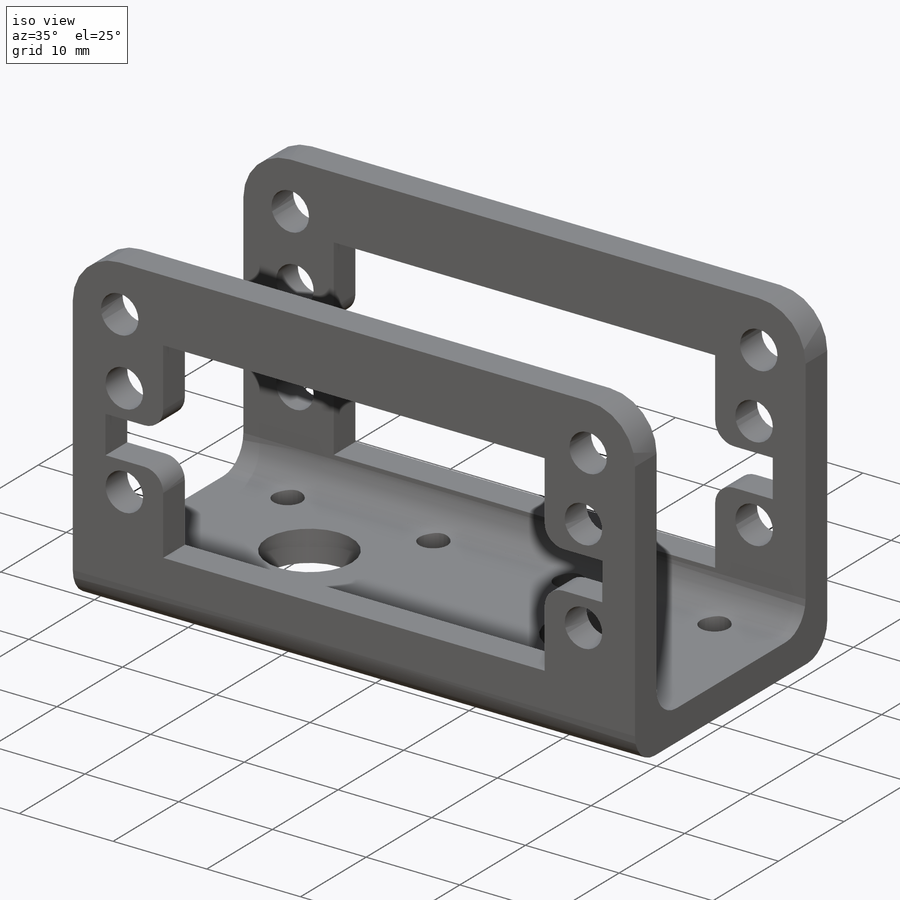
[diagram: iso view]
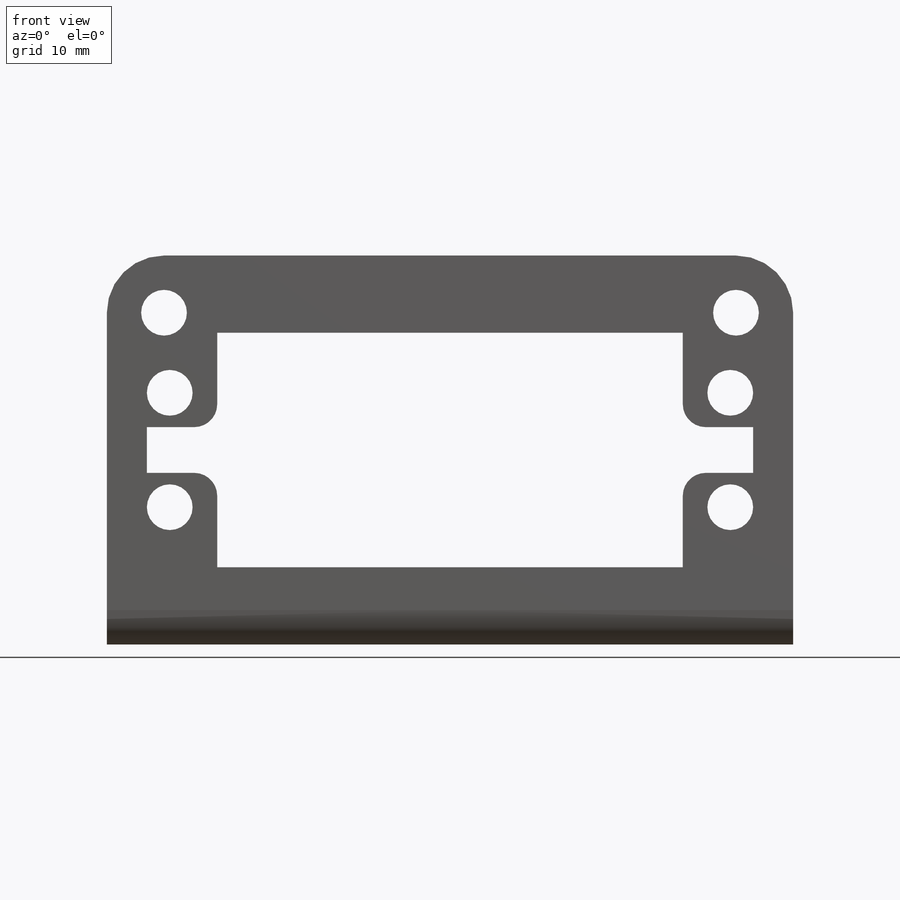
[diagram: front view]
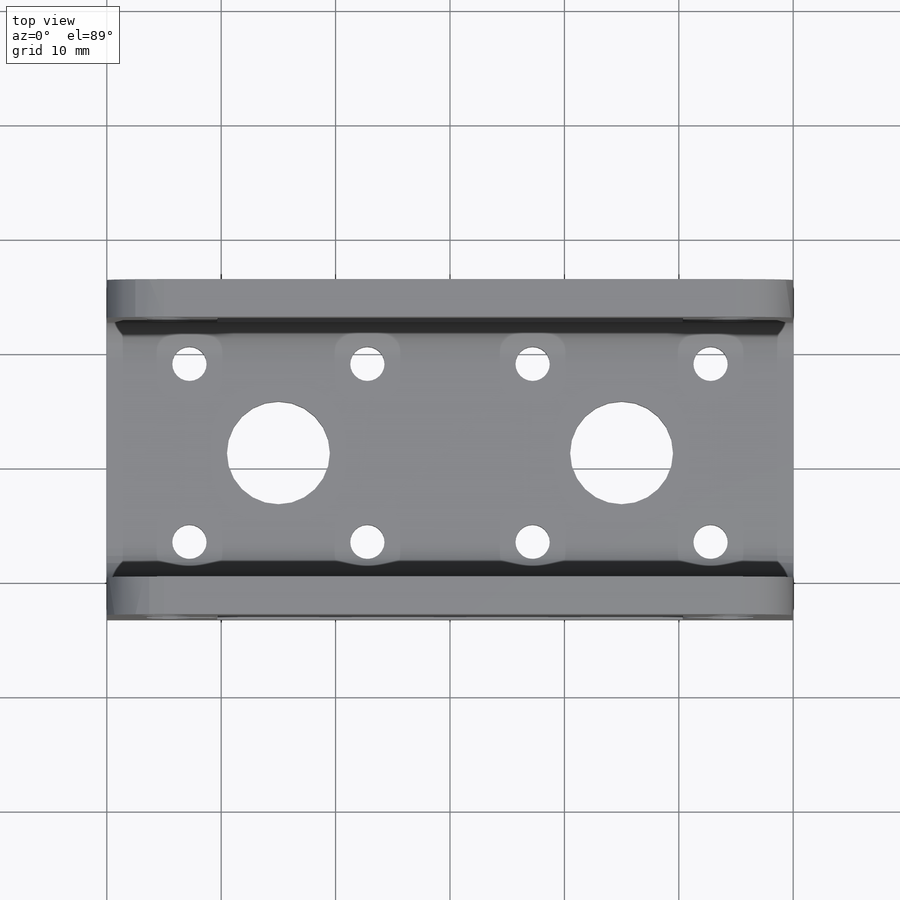
[diagram: top view]
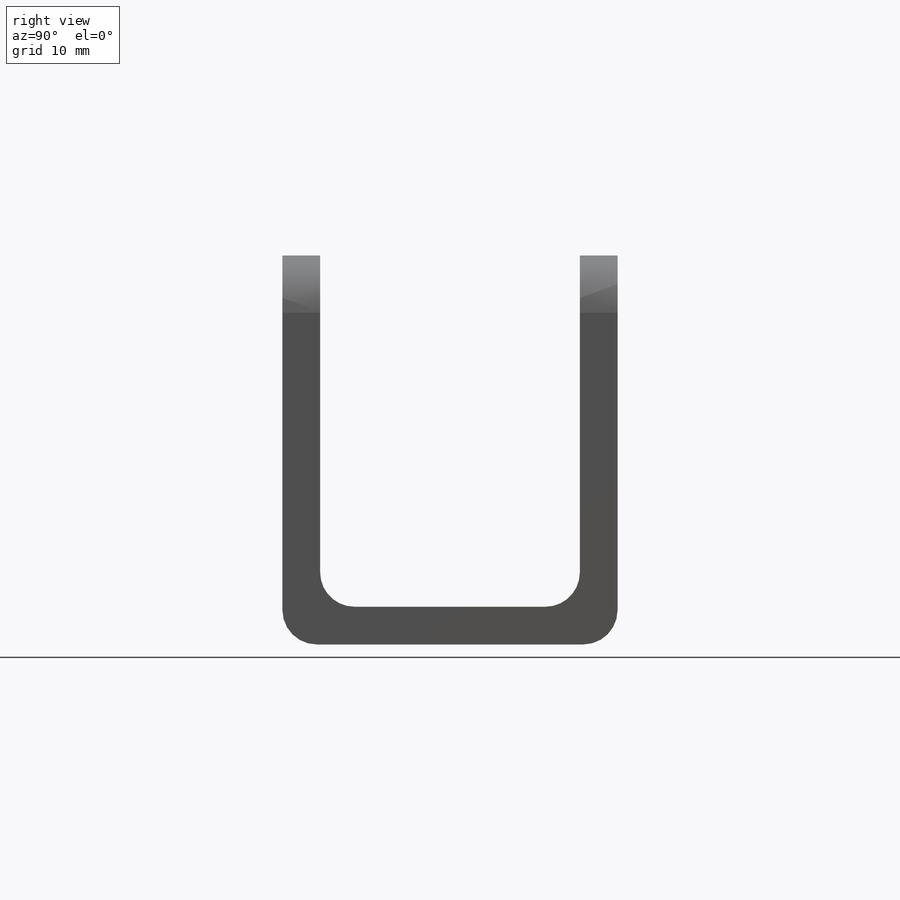
[diagram: right view]
SOLIDWORKS PART (.sldprt)
format: sldprt  version: not decoded by parser v0  size: 344,576 bytes
history: native  units: mm
features: sketch x4, extrude x2, material x1, plane x1, mirror x1, fillet x1, cut_extrude x1 (+13 scaffold rows collapsed)
feature tree (24):
  scaffold x13  (default folders/planes/origin — collapsed)
  material  "1060 Alloy"
  sketch  "Sketch1"  dims[c1.D3=5.0mm c1.D8=2.0mm c1.D9=4.0mm c1.D12=4.0mm c1.D1=~17.973791mm c1.D2=~35.051193mm c2.D1=60.0mm c2.D2=34.0mm c2.D3=34.0mm c2.D4=~16.33981mm c2.D5=~44.332351mm c3.D4=40.7mm c3.D5=20.5mm c3.D6=~1.586869mm c3.D7=~1.891182mm c4.D6=4.0mm c4.D7=6.15mm c4.D10=11.7mm c4.D11=49.0mm c5.D10=10.0mm]
  extrude  "Boss-Extrude1"  Depth=3.3mm
  sketch  "Sketch2"  dims[c1.D1=~4.327979mm c1.D2=60.0mm c2.D1=3.3mm]
  extrude  "Boss-Extrude2"  Depth=26mm
  sketch  "Mirror Sketch"  dims[D1=~2.204843mm]
  plane  "Mirror_Plane"
  mirror  "Mirror1"
  fillet  "Fillet1"  Radius=3mm
  sketch  "Sketch4"  dims[c1.D1=22.0mm c1.D4=3.0mm c1.D5=9.0mm c1.D2=30.0mm c1.D3=11.0mm c2.D3=45.0deg c2.D4=22.0mm]
  cut_extrude  "Cut-Extrude1"  Depth=18mm
decode coverage: 8 of 9 modeling features carry decoded parameters
note: ~ marks probable driven/reference dimensions
note: suppression state not decoded; provenance and decode notes live in map.json
